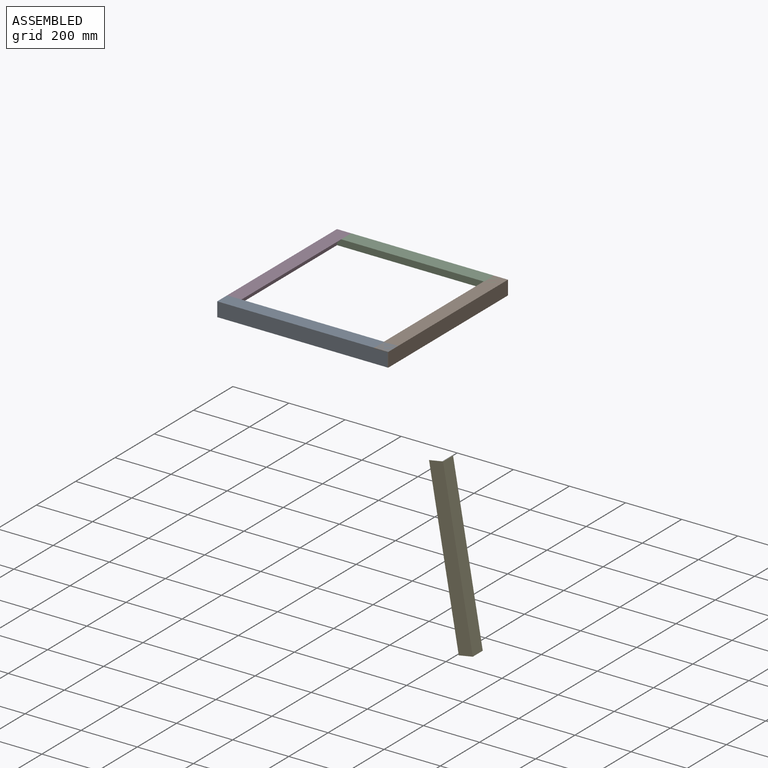
[diagram: assembled view]
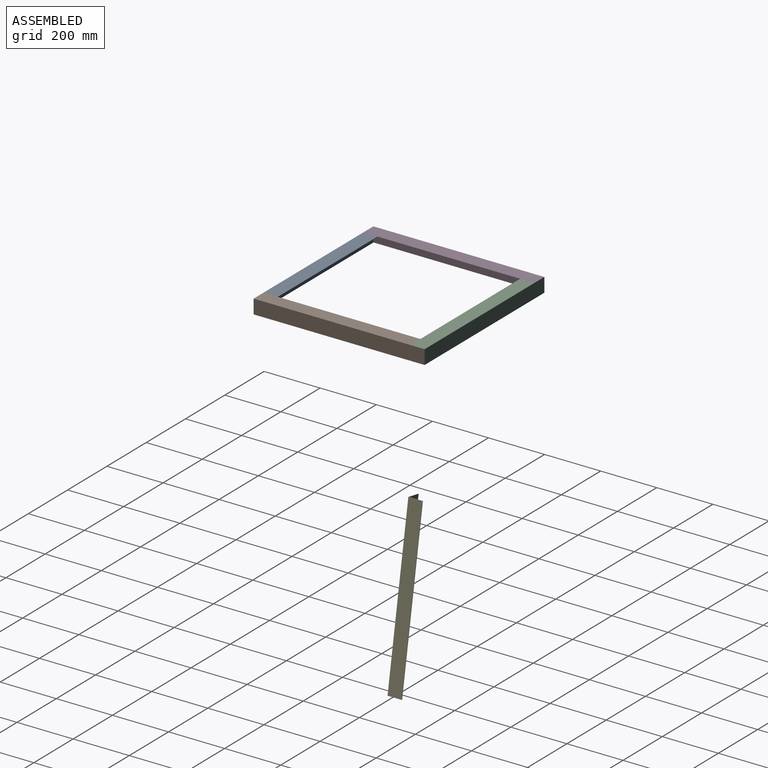
[diagram: assembled view, second angle]
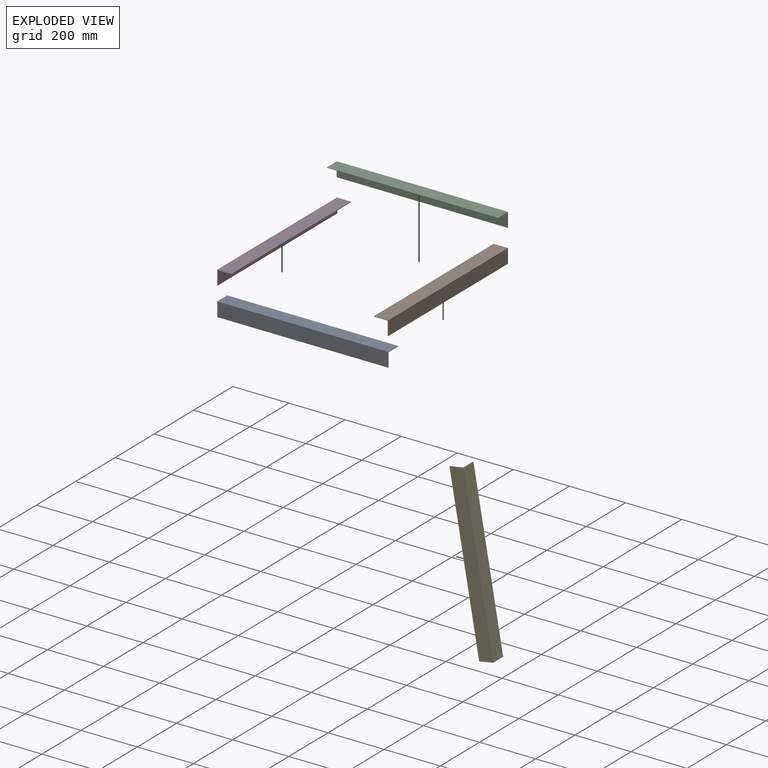
[diagram: exploded view]
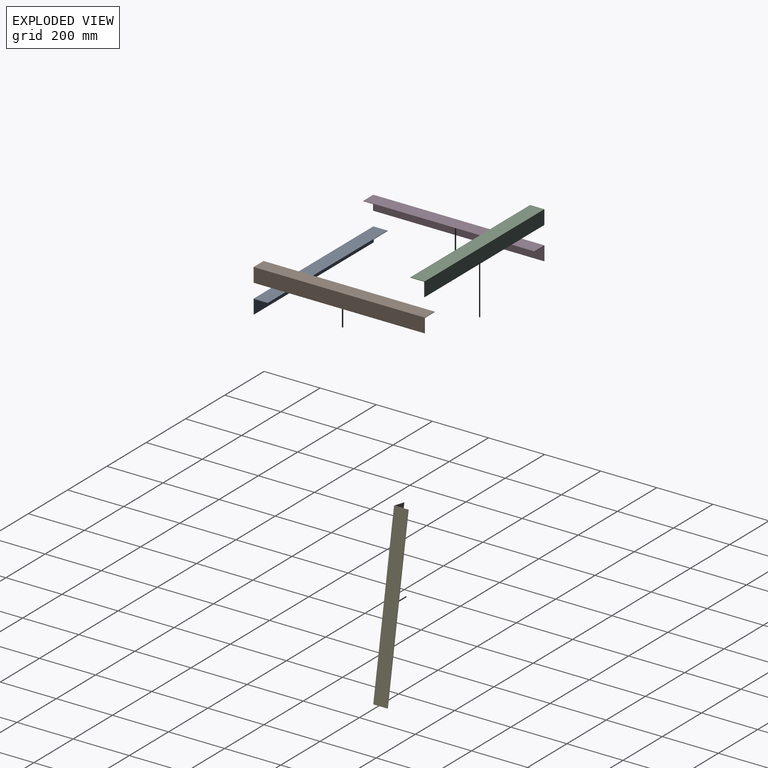
[diagram: exploded view, second angle]
ASSEMBLY  parts=5 mates=3
PART A: 8 faces, bbox 609.6x50.8x50.8 mm
  f0: plane 609.6x50.8mm, normal (0,-1,0), area 30967.7mm2, adj f1,f5,f6,f7
  f1: plane 609.6x1.59mm, normal (0,0,-1), area 967.7mm2, adj f0,f2,f6,f7
  f2: plane 609.6x49.21mm, normal (0,1,0), area 29999.9mm2, adj f1,f3,f6,f7
  f3: plane 609.6x49.21mm, normal (0,0,-1), area 29999.9mm2, adj f2,f4,f6,f7
  f4: plane 609.6x1.59mm, normal (0,1,0), area 967.7mm2, adj f3,f5,f6,f7
  f5: plane 609.6x50.8mm, normal (0,0,1), area 30967.7mm2, adj f0,f4,f6,f7
  f6: plane 50.8x50.8mm, normal (1,0,0), area 158.8mm2, adj f0,f1,f2,f3,f4,f5
  f7: plane 50.8x50.8mm, normal (-1,0,0), area 158.8mm2, adj f0,f1,f2,f3,f4,f5
PART B: same geometry as A
PART C: same geometry as A
PART D: same geometry as A
PART E: same geometry as A
PLACE A at identity fixed
PLACE B rot(axis=(0,0,1),90deg) t=(61.54,61.54,0)mm
PLACE C rot(axis=(0,0,1),180deg) t=(0,123.07,0)mm
PLACE D rot(axis=(0,0,-1),90deg) t=(-61.54,61.54,0)mm
PLACE E rot(axis=(0,1,0),80deg) t=(-620.66,461.96,-150.54)mm
MATE fastened B.f5 <-> A.f5  axis (0,0,1) through (304.8,-243.26,863.6)mm
MATE fastened D.f5 <-> A.f5  axis (0,0,1) through (-304.8,-243.26,863.6)mm
MATE fastened C.f5 <-> B.f5  axis (0,0,1) through (304.8,366.34,863.6)mm
